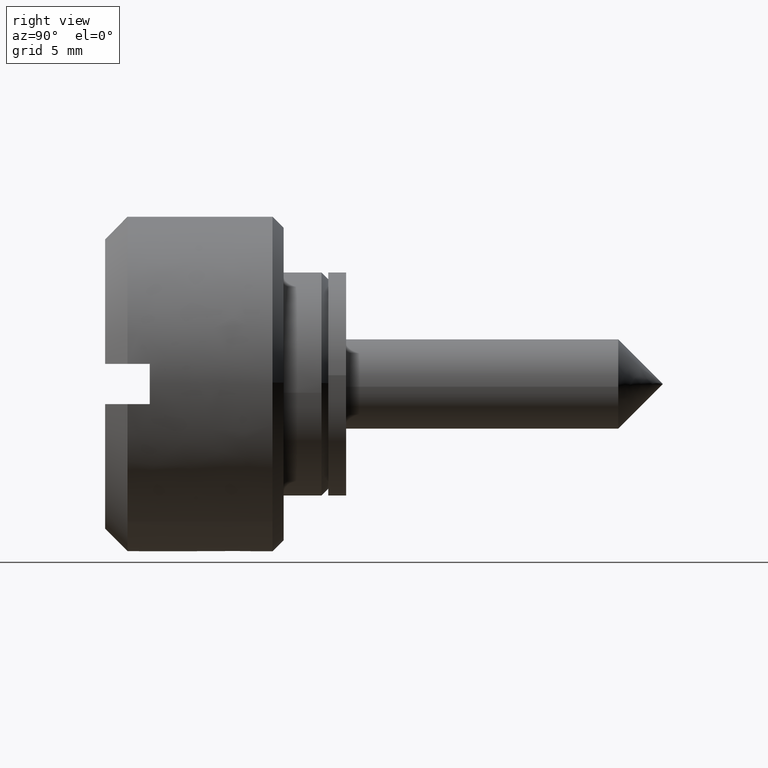
[diagram: clean part render]
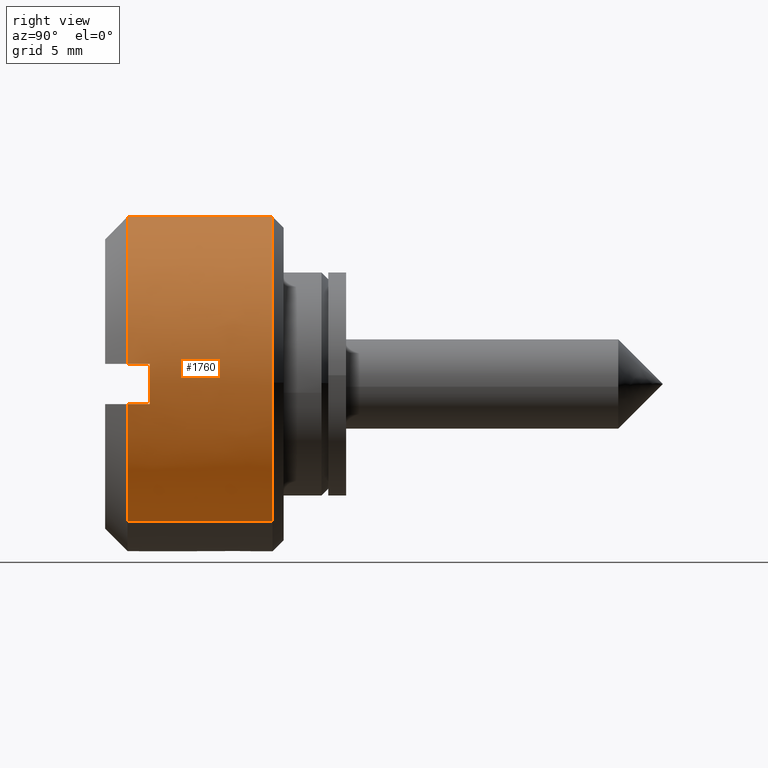
[diagram: same view with one face highlighted and labeled with its STEP entity id]
A machine part, right view. The second image highlights one B-rep face of the part: STEP entity #1760.
In plain terms, the highlighted face is a freeform B-spline surface patch.
Its self-contained STEP definition (entity closure, byte-faithful):
#1041=CARTESIAN_POINT('',(-2.500000000002919,-7.499714422983962,0.065449016258878));
#1042=VERTEX_POINT('',#1041);
#1043=CARTESIAN_POINT('',(-2.500000000000060,0.0,7.500000000000000));
#1044=VERTEX_POINT('',#1043);
#1045=CARTESIAN_POINT('',(-2.500000000002919,-7.499714422983962,0.065449016258878));
#1046=CARTESIAN_POINT('',(-2.500000000000060,-7.434834079420601,7.500000000000000));
#1047=CARTESIAN_POINT('',(-2.500000000000060,0.0,7.500000000000000));
#1055=(BOUNDED_CURVE()B_SPLINE_CURVE(2,(#1045,#1046,#1047),.UNSPECIFIED.,.F.,.U.)B_SPLINE_CURVE_WITH_KNOTS((3,3),(0.251539894335976,0.500000000000000),.UNSPECIFIED.)CURVE()GEOMETRIC_REPRESENTATION_ITEM()RATIONAL_B_SPLINE_CURVE((0.996414028098118,0.708910879621334,1.0))REPRESENTATION_ITEM(''));
#1056=EDGE_CURVE('',#1042,#1044,#1055,.T.);
#1104=CARTESIAN_POINT('',(-2.500000000000061,4.969650188898491,5.617168058726845));
#1105=VERTEX_POINT('',#1104);
#1121=CARTESIAN_POINT('',(-2.500000000000060,0.0,7.500000000000000));
#1122=CARTESIAN_POINT('',(-2.500000000000060,2.841495551498860,7.500000000000000));
#1123=CARTESIAN_POINT('',(-2.500000000000061,4.969650188898492,5.617168058726845));
#1131=(BOUNDED_CURVE()B_SPLINE_CURVE(2,(#1121,#1122,#1123),.UNSPECIFIED.,.F.,.U.)B_SPLINE_CURVE_WITH_KNOTS((3,3),(0.500000000000000,0.615779878771727),.UNSPECIFIED.)CURVE()GEOMETRIC_REPRESENTATION_ITEM()RATIONAL_B_SPLINE_CURVE((1.0,0.864355434530870,0.854350159830216))REPRESENTATION_ITEM(''));
#1132=EDGE_CURVE('',#1044,#1105,#1131,.T.);
#1155=CARTESIAN_POINT('',(-2.500000000000060,-4.287827677730171,-6.153416433663960));
#1156=VERTEX_POINT('',#1155);
#1157=CARTESIAN_POINT('',(-2.500000000000060,-4.287827677730171,-6.153416433663961));
#1158=CARTESIAN_POINT('',(-2.500000000000061,-7.499999999999999,-3.915108407944401));
#1159=CARTESIAN_POINT('',(-2.500000000000060,-7.500000000000000,0.0));
#1160=CARTESIAN_POINT('',(-2.500000000000060,-7.500000000000001,0.032725131176314));
#1161=CARTESIAN_POINT('',(-2.500000000002919,-7.499714422983962,0.065449016258878));
#1169=(BOUNDED_CURVE()B_SPLINE_CURVE(2,(#1157,#1158,#1159,#1160,#1161),.UNSPECIFIED.,.F.,.U.)B_SPLINE_CURVE_WITH_KNOTS((3,2,3),(0.098251837070783,0.250000000000000,0.251539894335976),.UNSPECIFIED.)CURVE()GEOMETRIC_REPRESENTATION_ITEM()RATIONAL_B_SPLINE_CURVE((0.860259138381031,0.822215968442534,1.0,0.998195901565214,0.996414028098117))REPRESENTATION_ITEM(''));
#1170=EDGE_CURVE('',#1156,#1042,#1169,.T.);
#1593=CARTESIAN_POINT('',(-9.000000000000009,-4.287828382099761,-6.153415942844884));
#1594=VERTEX_POINT('',#1593);
#1641=CARTESIAN_POINT('',(-9.0,4.969650356903044,5.617167910088983));
#1642=VERTEX_POINT('',#1641);
#1656=CARTESIAN_POINT('',(-9.0,4.969650356903044,5.617167910088983));
#1657=CARTESIAN_POINT('',(-2.500000000000061,4.969650188898491,5.617168058726845));
#1658=QUASI_UNIFORM_CURVE('',1,(#1656,#1657),.UNSPECIFIED.,.F.,.U.);
#1659=EDGE_CURVE('',#1642,#1105,#1658,.T.);
#1664=CARTESIAN_POINT('',(-9.000000000000009,-4.287828382099761,-6.153415942844884));
#1665=CARTESIAN_POINT('',(-2.500000000000060,-4.287827677730171,-6.153416433663960));
#1666=QUASI_UNIFORM_CURVE('',1,(#1664,#1665),.UNSPECIFIED.,.F.,.U.);
#1667=EDGE_CURVE('',#1594,#1156,#1666,.T.);
#1672=CARTESIAN_POINT('',(-9.162500000000000,4.969650361618027,5.617167905917516));
#1673=CARTESIAN_POINT('',(-9.162500000000000,-0.647517544299490,10.586818267535543));
#1674=CARTESIAN_POINT('',(-9.162500000000000,-5.617167905917516,4.969650361618027));
#1675=CARTESIAN_POINT('',(-9.162500000000000,-10.586818267535543,-0.647517544299490));
#1676=CARTESIAN_POINT('',(-9.162500000000000,-4.969650361618027,-5.617167905917516));
#1677=CARTESIAN_POINT('',(-9.162499999999998,-4.644271253485768,-5.905039023440805));
#1678=CARTESIAN_POINT('',(-9.162500000000000,-4.287829581630136,-6.153415106987136));
#1679=CARTESIAN_POINT('',(-2.333437500000061,4.969650361618027,5.617167905917516));
#1680=CARTESIAN_POINT('',(-2.333437500000061,-0.647517544299490,10.586818267535543));
#1681=CARTESIAN_POINT('',(-2.333437500000061,-5.617167905917516,4.969650361618027));
#1682=CARTESIAN_POINT('',(-2.333437500000060,-10.586818267535543,-0.647517544299490));
#1683=CARTESIAN_POINT('',(-2.333437500000060,-4.969650361618027,-5.617167905917516));
#1684=CARTESIAN_POINT('',(-2.333437500000060,-4.644271253485768,-5.905039023440805));
#1685=CARTESIAN_POINT('',(-2.333437500000061,-4.287829581630136,-6.153415106987136));
#1693=(BOUNDED_SURFACE()B_SPLINE_SURFACE(2,1,((#1672,#1679),(#1673,#1680),(#1674,#1681),(#1675,#1682),(#1676,#1683),(#1677,#1684),(#1678,#1685)),.UNSPECIFIED.,.F.,.F.,.U.)B_SPLINE_SURFACE_WITH_KNOTS((3,2,2,3),(2,2),(0.0,12.426406871192849,24.852813742385688,25.846926292081118),(0.0,6.829062499999940),.UNSPECIFIED.)GEOMETRIC_REPRESENTATION_ITEM()RATIONAL_B_SPLINE_SURFACE(((1.0,1.0),(0.707106781186548,0.707106781186548),(1.0,1.0),(0.707106781186548,0.707106781186548),(1.0,1.0),(0.976568542494924,0.976568542494924),(0.956886118190660,0.956886118190660)))REPRESENTATION_ITEM('')SURFACE());
#1694=CARTESIAN_POINT('',(-9.0,-7.445804187594519,-0.899999999999984));
#1695=VERTEX_POINT('',#1694);
#1696=CARTESIAN_POINT('',(-9.0,-7.445804187594516,-0.899999999999985));
#1697=CARTESIAN_POINT('',(-9.0,-7.042853582104098,-4.233657006393711));
#1698=CARTESIAN_POINT('',(-9.000000000000011,-4.287828382099761,-6.153415942844884));
#1706=(BOUNDED_CURVE()B_SPLINE_CURVE(2,(#1696,#1697,#1698),.UNSPECIFIED.,.F.,.U.)B_SPLINE_CURVE_WITH_KNOTS((3,3),(0.0,0.288480236493079),.UNSPECIFIED.)CURVE()GEOMETRIC_REPRESENTATION_ITEM()RATIONAL_B_SPLINE_CURVE((1.0,0.854797210138891,0.877146960912132))REPRESENTATION_ITEM(''));
#1707=EDGE_CURVE('',#1695,#1594,#1706,.T.);
#1708=ORIENTED_EDGE('',*,*,#1707,.T.);
#1709=ORIENTED_EDGE('',*,*,#1667,.T.);
#1710=ORIENTED_EDGE('',*,*,#1170,.T.);
#1711=ORIENTED_EDGE('',*,*,#1056,.T.);
#1712=ORIENTED_EDGE('',*,*,#1132,.T.);
#1713=ORIENTED_EDGE('',*,*,#1659,.F.);
#1714=CARTESIAN_POINT('',(-9.0,-7.445804187594519,0.900000000000013));
#1715=VERTEX_POINT('',#1714);
#1716=CARTESIAN_POINT('',(-9.0,4.969650356903044,5.617167910088982));
#1717=CARTESIAN_POINT('',(-9.0,2.841495808015803,7.500000000000001));
#1718=CARTESIAN_POINT('',(-9.0,0.0,7.500000000000000));
#1719=CARTESIAN_POINT('',(-9.0,-6.648039453209375,7.500000000000003));
#1720=CARTESIAN_POINT('',(-9.0,-7.445804187594512,0.900000000000014));
#1728=(BOUNDED_CURVE()B_SPLINE_CURVE(2,(#1716,#1717,#1718,#1719,#1720),.UNSPECIFIED.,.F.,.U.)B_SPLINE_CURVE_WITH_KNOTS((3,2,3),(0.250310217785027,0.500000000000000,1.0),.UNSPECIFIED.)CURVE()GEOMETRIC_REPRESENTATION_ITEM()RATIONAL_B_SPLINE_CURVE((0.874165932432106,0.874321882780706,1.0,0.748331477354789,1.0))REPRESENTATION_ITEM(''));
#1729=EDGE_CURVE('',#1642,#1715,#1728,.T.);
#1730=ORIENTED_EDGE('',*,*,#1729,.T.);
#1731=CARTESIAN_POINT('',(-8.0,-7.445804187594510,0.900000000000063));
#1732=VERTEX_POINT('',#1731);
#1733=CARTESIAN_POINT('',(-9.0,-7.445804187594519,0.900000000000013));
#1734=CARTESIAN_POINT('',(-8.0,-7.445804187594510,0.900000000000063));
#1735=QUASI_UNIFORM_CURVE('',1,(#1733,#1734),.UNSPECIFIED.,.F.,.U.);
#1736=EDGE_CURVE('',#1715,#1732,#1735,.T.);
#1737=ORIENTED_EDGE('',*,*,#1736,.T.);
#1738=CARTESIAN_POINT('',(-8.0,-7.445804187594550,-0.899999999999984));
#1739=VERTEX_POINT('',#1738);
#1740=CARTESIAN_POINT('',(-8.0,-7.445804187594505,0.900000000000066));
#1741=CARTESIAN_POINT('',(-8.0,-7.554590287737943,4.076600E-014));
#1742=CARTESIAN_POINT('',(-8.0,-7.445804187594550,-0.899999999999984));
#1750=(BOUNDED_CURVE()B_SPLINE_CURVE(2,(#1740,#1741,#1742),.UNSPECIFIED.,.F.,.U.)CURVE()GEOMETRIC_REPRESENTATION_ITEM()QUASI_UNIFORM_CURVE()RATIONAL_B_SPLINE_CURVE((1.0,0.992773891679268,1.0))REPRESENTATION_ITEM(''));
#1751=EDGE_CURVE('',#1732,#1739,#1750,.T.);
#1752=ORIENTED_EDGE('',*,*,#1751,.T.);
#1753=CARTESIAN_POINT('',(-8.0,-7.445804187594550,-0.899999999999984));
#1754=CARTESIAN_POINT('',(-9.0,-7.445804187594519,-0.899999999999984));
#1755=QUASI_UNIFORM_CURVE('',1,(#1753,#1754),.UNSPECIFIED.,.F.,.U.);
#1756=EDGE_CURVE('',#1739,#1695,#1755,.T.);
#1757=ORIENTED_EDGE('',*,*,#1756,.T.);
#1758=EDGE_LOOP('',(#1708,#1709,#1710,#1711,#1712,#1713,#1730,#1737,#1752,#1757));
#1759=FACE_OUTER_BOUND('',#1758,.T.);
#1760=ADVANCED_FACE('',(#1759),#1693,.T.);